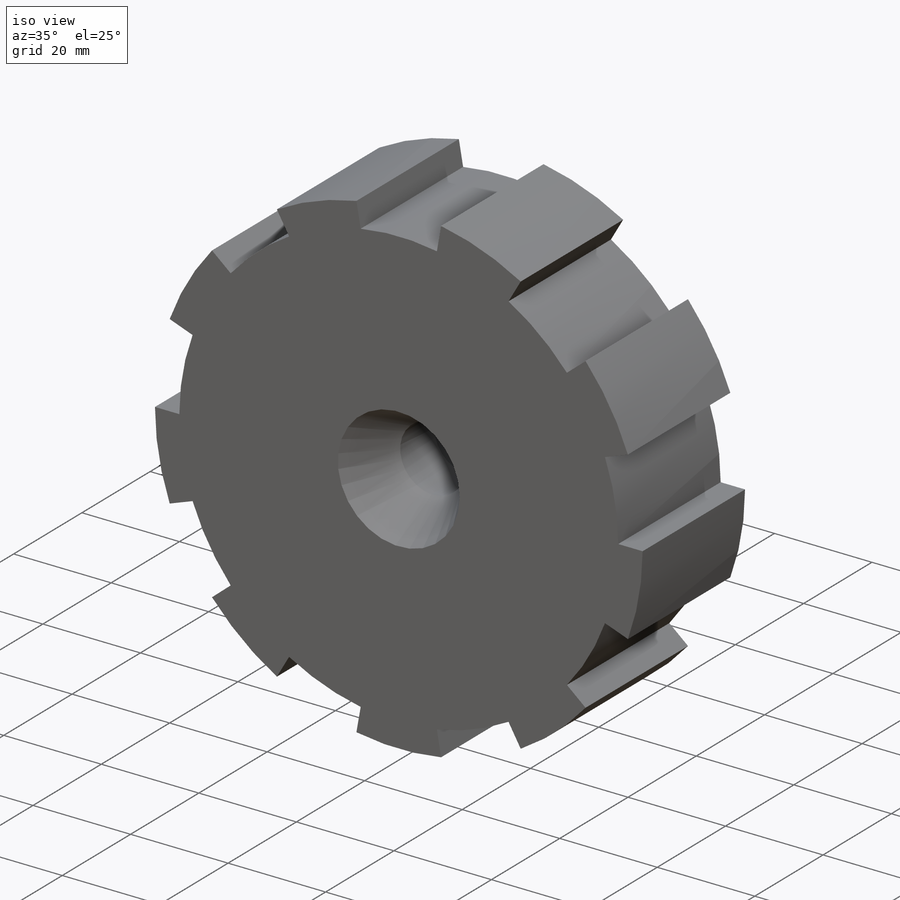
[diagram: iso view]
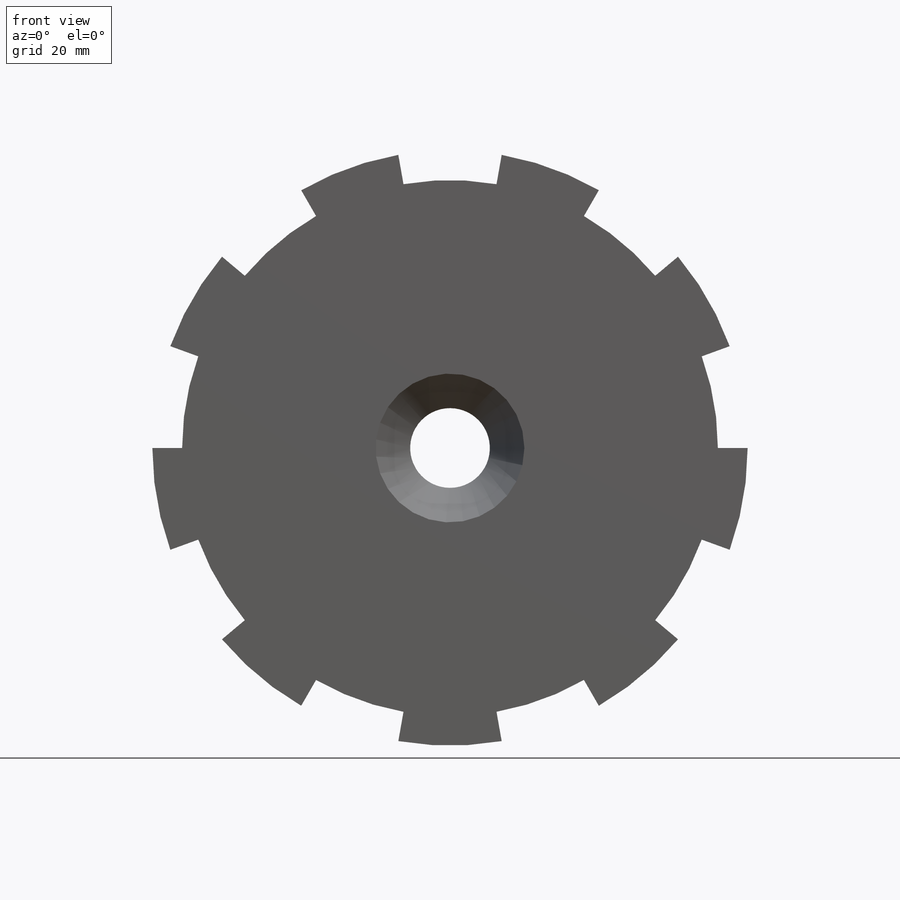
[diagram: front view]
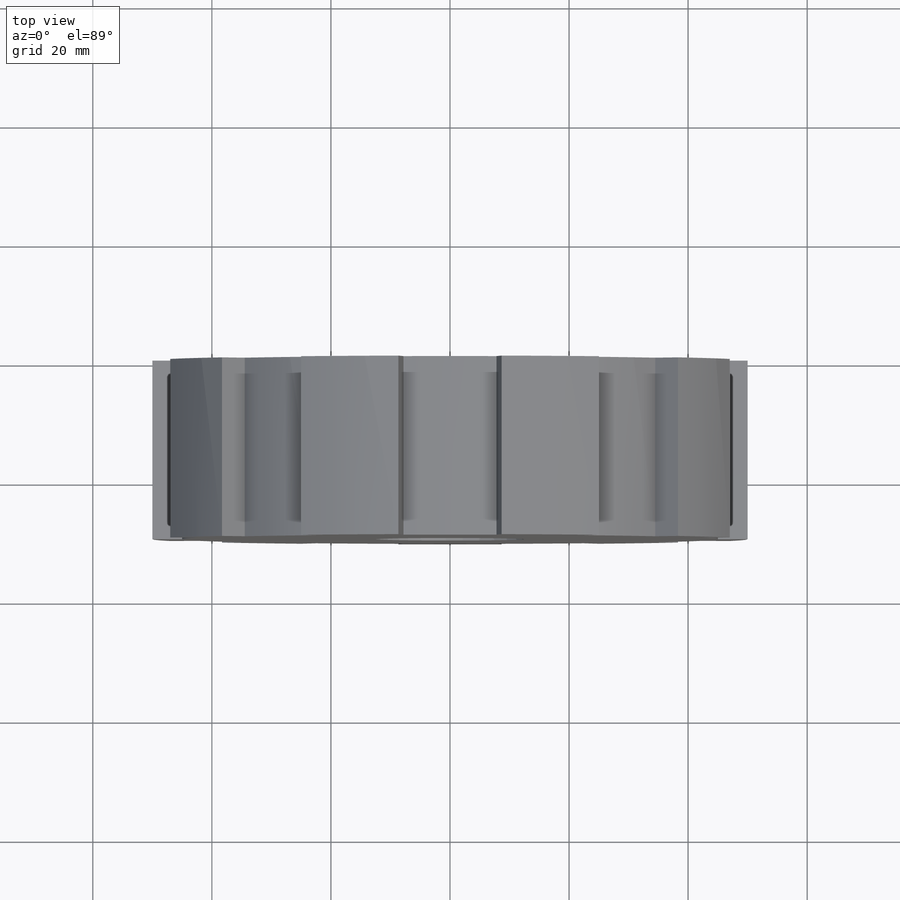
[diagram: top view]
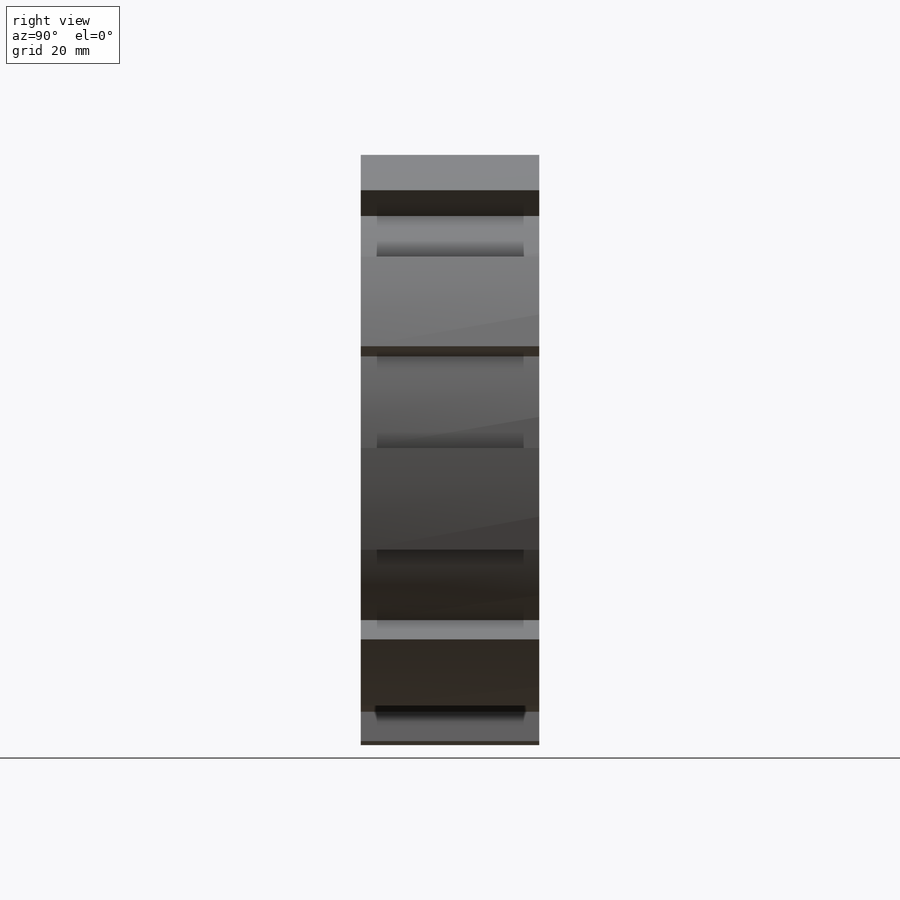
[diagram: right view]
SOLIDWORKS PART (.sldprt)
format: sldprt  version: not decoded by parser v0  size: 254,464 bytes
history: native  units: mm
features: sketch x4, cut_extrude x3, material x1, extrude x1 (+16 scaffold rows collapsed)
feature tree (25):
  scaffold x16  (default folders/planes/origin — collapsed)
  material  "Material <not specified>"
  sketch  "Sketch1"  dims[c1.D1=100.0mm c1.D3=45.0mm c1.D2=45.0mm c2.D1=100.0mm c2.D2=5.0mm c2.D3=5.0mm c3.D3=10.0deg c3.D4=9.0]
  extrude  "Boss-Extrude1"  Depth=30mm
  sketch  "Sketch 2"  dims[D1=25.0mm]
  cut_extrude  "Cut-Extrude1"  Depth=10mm
  sketch  "Sketch3"  dims[D1=0.0mm]
  cut_extrude  "Cut-Extrude4"  Depth=10mm
  sketch  "Sketch8"
  cut_extrude  "Cut-Extrude5"  Depth=60mm
decode coverage: 7 of 8 modeling features carry decoded parameters
note: suppression state not decoded; provenance and decode notes live in map.json
